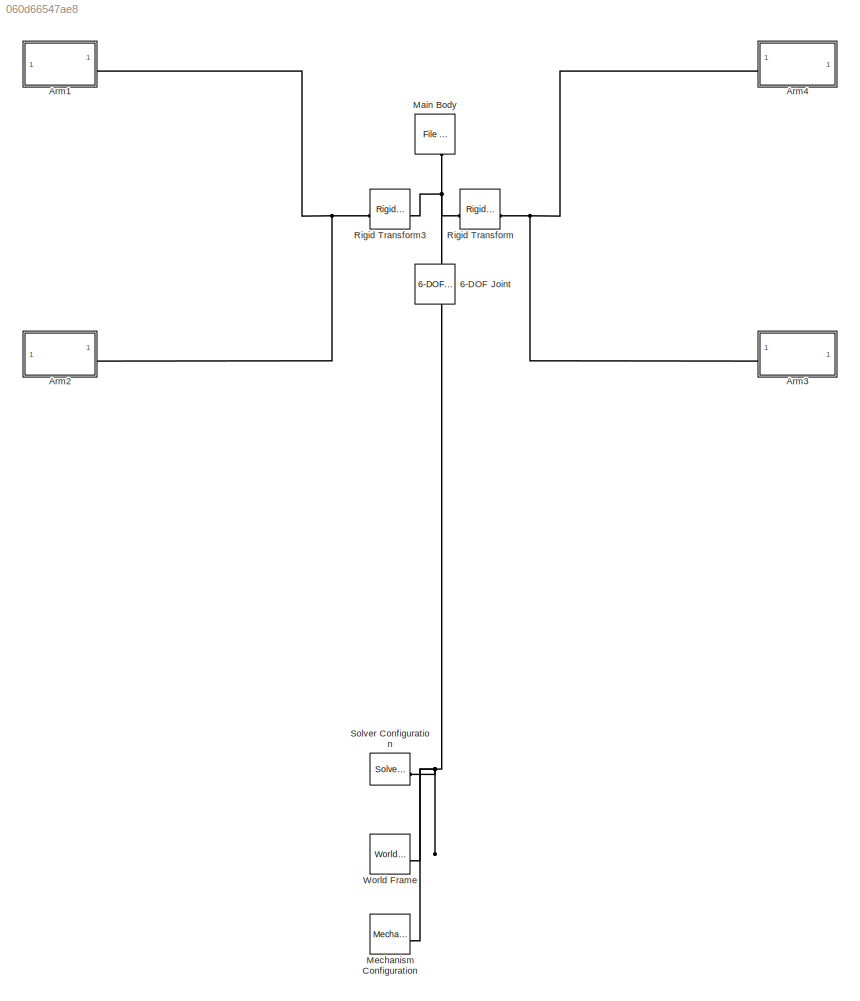
MODEL slx_060d66547ae8
KIND model
CONFIG AbsTol = 1e-3
CONFIG EnableMultiTasking = on
CONFIG FixedStep = auto
CONFIG MaxStep = auto
CONFIG MinStep = auto
CONFIG RelTol = 1e-3
CONFIG SampleTimeConstraint = Unconstrained
CONFIG SolverName = VariableStepAuto
CONFIG StartTime = 0.0
CONFIG StopTime = 10.0
BLOCK [Reference] 6-DOF Joint  REF=sm_lib/Joints/6-DOF Joint
  NameLocation = right
  SourceBlock = sm_lib/Joints/6-DOF Joint
  SourceType = 6-DOF Joint
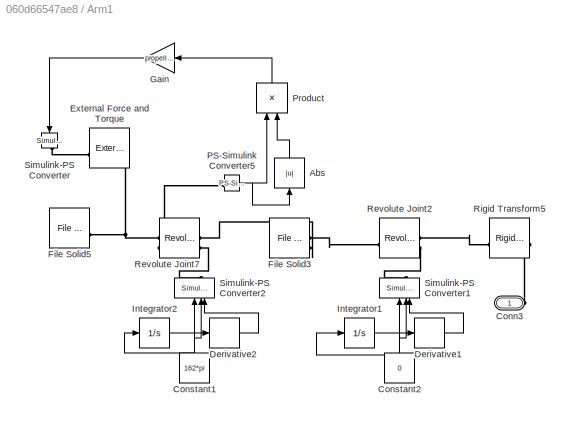
BLOCK [SubSystem] Arm1
  NameLocation = top
BLOCK [Abs] Arm1/Abs
  NameLocation = right
  SaturateOnIntegerOverflow = off
BLOCK [PMIOPort] Arm1/Conn3
  Side = Left
BLOCK [Constant] Arm1/Constant1
  NameLocation = right
  Value = 162*pi
BLOCK [Constant] Arm1/Constant2
  NameLocation = right
  Value = 0
BLOCK [Derivative] Arm1/Derivative1
BLOCK [Derivative] Arm1/Derivative2
BLOCK [Reference] Arm1/External Force and Torque  REF=sm_lib/Forces and
Torques/External Force
and Torque
  SourceBlock = sm_lib/Forces and\nTorques/External Force\nand Torque
  SourceType = External Force\nand Torque
BLOCK [Reference] Arm1/File Solid3  REF=sm_lib/Body Elements/File Solid
  NameLocation = top
  SourceBlock = sm_lib/Body Elements/File Solid
  SourceType = File Solid
BLOCK [Reference] Arm1/File Solid5  REF=sm_lib/Body Elements/File Solid
  NameLocation = top
  SourceBlock = sm_lib/Body Elements/File Solid
  SourceType = File Solid
BLOCK [Gain] Arm1/Gain
  Gain = propeller_lift_coefficient
  NameLocation = top
BLOCK [Integrator] Arm1/Integrator1
BLOCK [Integrator] Arm1/Integrator2
BLOCK [Reference] Arm1/PS-Simulink Converter5  REF=nesl_utility/PS-Simulink
Converter
  SourceBlock = nesl_utility/PS-Simulink\nConverter
  SourceType = PS-Simulink\nConverter
BLOCK [Product] Arm1/Product
  NameLocation = right
BLOCK [Reference] Arm1/Revolute Joint2  REF=sm_lib/Joints/Revolute Joint
  SourceBlock = sm_lib/Joints/Revolute Joint
  SourceType = Revolute Joint
BLOCK [Reference] Arm1/Revolute Joint7  REF=sm_lib/Joints/Revolute Joint
  SourceBlock = sm_lib/Joints/Revolute Joint
  SourceType = Revolute Joint
BLOCK [Reference] Arm1/Rigid Transform5  REF=sm_lib/Frames and
Transforms/Rigid
Transform
  SourceBlock = sm_lib/Frames and\nTransforms/Rigid\nTransform
  SourceType = Rigid\nTransform
BLOCK [Reference] Arm1/Simulink-PS Converter  REF=nesl_utility/Simulink-PS
Converter
  NameLocation = left
  SourceBlock = nesl_utility/Simulink-PS\nConverter
  SourceType = Simulink-PS\nConverter
BLOCK [Reference] Arm1/Simulink-PS Converter1  REF=nesl_utility/Simulink-PS
Converter
  NameLocation = right
  SourceBlock = nesl_utility/Simulink-PS\nConverter
  SourceType = Simulink-PS\nConverter
BLOCK [Reference] Arm1/Simulink-PS Converter2  REF=nesl_utility/Simulink-PS
Converter
  NameLocation = right
  SourceBlock = nesl_utility/Simulink-PS\nConverter
  SourceType = Simulink-PS\nConverter
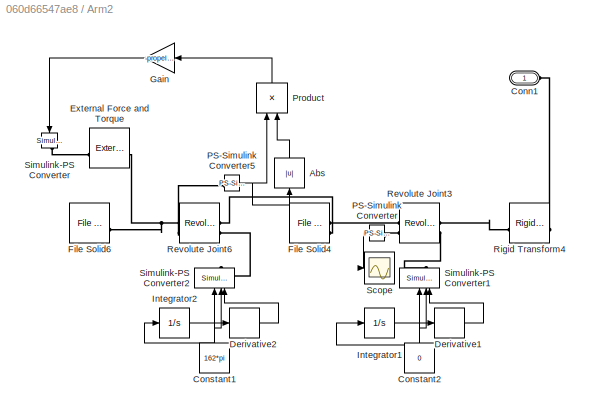
BLOCK [SubSystem] Arm2
  NameLocation = top
BLOCK [Abs] Arm2/Abs
  NameLocation = right
  SaturateOnIntegerOverflow = off
BLOCK [PMIOPort] Arm2/Conn1
  Side = Left
BLOCK [Constant] Arm2/Constant1
  NameLocation = right
  Value = 162*pi
BLOCK [Constant] Arm2/Constant2
  NameLocation = right
  Value = 0
BLOCK [Derivative] Arm2/Derivative1
BLOCK [Derivative] Arm2/Derivative2
BLOCK [Reference] Arm2/External Force and Torque  REF=sm_lib/Forces and
Torques/External Force
and Torque
  SourceBlock = sm_lib/Forces and\nTorques/External Force\nand Torque
  SourceType = External Force\nand Torque
BLOCK [Reference] Arm2/File Solid4  REF=sm_lib/Body Elements/File Solid
  NameLocation = top
  SourceBlock = sm_lib/Body Elements/File Solid
  SourceType = File Solid
BLOCK [Reference] Arm2/File Solid6  REF=sm_lib/Body Elements/File Solid
  NameLocation = top
  SourceBlock = sm_lib/Body Elements/File Solid
  SourceType = File Solid
BLOCK [Gain] Arm2/Gain
  Gain = -propeller_lift_coefficient
  NameLocation = top
BLOCK [Integrator] Arm2/Integrator1
BLOCK [Integrator] Arm2/Integrator2
BLOCK [Reference] Arm2/PS-Simulink Converter  REF=nesl_utility/PS-Simulink
Converter
  NameLocation = top
  SourceBlock = nesl_utility/PS-Simulink\nConverter
  SourceType = PS-Simulink\nConverter
BLOCK [Reference] Arm2/PS-Simulink Converter5  REF=nesl_utility/PS-Simulink
Converter
  SourceBlock = nesl_utility/PS-Simulink\nConverter
  SourceType = PS-Simulink\nConverter
BLOCK [Product] Arm2/Product
  NameLocation = right
BLOCK [Reference] Arm2/Revolute Joint3  REF=sm_lib/Joints/Revolute Joint
  SourceBlock = sm_lib/Joints/Revolute Joint
  SourceType = Revolute Joint
BLOCK [Reference] Arm2/Revolute Joint6  REF=sm_lib/Joints/Revolute Joint
  SourceBlock = sm_lib/Joints/Revolute Joint
  SourceType = Revolute Joint
BLOCK [Reference] Arm2/Rigid Transform4  REF=sm_lib/Frames and
Transforms/Rigid
Transform
  SourceBlock = sm_lib/Frames and\nTransforms/Rigid\nTransform
  SourceType = Rigid\nTransform
BLOCK [Scope] Arm2/Scope
  Floating = off
  NumInputPorts = 1
  ScopeSpecificationString = Simulink.scopes.TimeScopeBlockCfg('CurrentConfiguration', extmgr.ConfigurationSet(extmgr.Configuration('Core','General UI',true),extmgr.Configuration('Core','Source UI',true),extmgr.Configuration('Sources','WiredSimulink',true),extmgr.Configuration('Visuals','Time Domain',true,'SerializedDisplays',{struct('MinYLimReal','-1.00000','MaxYLimReal','1.00000','YLabelReal','','MinYLimMag','0.00000','MaxY...<+1341ch>
BLOCK [Reference] Arm2/Simulink-PS Converter  REF=nesl_utility/Simulink-PS
Converter
  NameLocation = left
  SourceBlock = nesl_utility/Simulink-PS\nConverter
  SourceType = Simulink-PS\nConverter
BLOCK [Reference] Arm2/Simulink-PS Converter1  REF=nesl_utility/Simulink-PS
Converter
  NameLocation = right
  SourceBlock = nesl_utility/Simulink-PS\nConverter
  SourceType = Simulink-PS\nConverter
BLOCK [Reference] Arm2/Simulink-PS Converter2  REF=nesl_utility/Simulink-PS
Converter
  NameLocation = right
  SourceBlock = nesl_utility/Simulink-PS\nConverter
  SourceType = Simulink-PS\nConverter
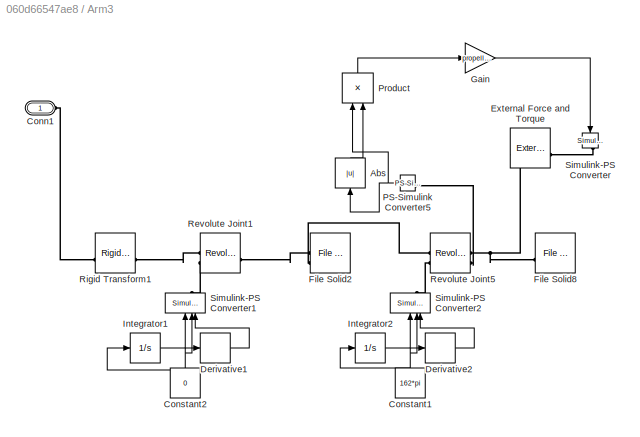
BLOCK [SubSystem] Arm3
BLOCK [Abs] Arm3/Abs
  NameLocation = right
  SaturateOnIntegerOverflow = off
BLOCK [PMIOPort] Arm3/Conn1
  Side = Left
BLOCK [Constant] Arm3/Constant1
  NameLocation = right
  Value = 162*pi
BLOCK [Constant] Arm3/Constant2
  NameLocation = right
  Value = 0
BLOCK [Derivative] Arm3/Derivative1
BLOCK [Derivative] Arm3/Derivative2
BLOCK [Reference] Arm3/External Force and Torque  REF=sm_lib/Forces and
Torques/External Force
and Torque
  SourceBlock = sm_lib/Forces and\nTorques/External Force\nand Torque
  SourceType = External Force\nand Torque
BLOCK [Reference] Arm3/File Solid2  REF=sm_lib/Body Elements/File Solid
  SourceBlock = sm_lib/Body Elements/File Solid
  SourceType = File Solid
BLOCK [Reference] Arm3/File Solid8  REF=sm_lib/Body Elements/File Solid
  SourceBlock = sm_lib/Body Elements/File Solid
  SourceType = File Solid
BLOCK [Gain] Arm3/Gain
  Gain = propeller_lift_coefficient
  NameLocation = top
BLOCK [Integrator] Arm3/Integrator1
BLOCK [Integrator] Arm3/Integrator2
BLOCK [Reference] Arm3/PS-Simulink Converter5  REF=nesl_utility/PS-Simulink
Converter
  SourceBlock = nesl_utility/PS-Simulink\nConverter
  SourceType = PS-Simulink\nConverter
BLOCK [Product] Arm3/Product
  NameLocation = right
BLOCK [Reference] Arm3/Revolute Joint1  REF=sm_lib/Joints/Revolute Joint
  SourceBlock = sm_lib/Joints/Revolute Joint
  SourceType = Revolute Joint
BLOCK [Reference] Arm3/Revolute Joint5  REF=sm_lib/Joints/Revolute Joint
  SourceBlock = sm_lib/Joints/Revolute Joint
  SourceType = Revolute Joint
BLOCK [Reference] Arm3/Rigid Transform1  REF=sm_lib/Frames and
Transforms/Rigid
Transform
  SourceBlock = sm_lib/Frames and\nTransforms/Rigid\nTransform
  SourceType = Rigid\nTransform
BLOCK [Reference] Arm3/Simulink-PS Converter  REF=nesl_utility/Simulink-PS
Converter
  NameLocation = left
  SourceBlock = nesl_utility/Simulink-PS\nConverter
  SourceType = Simulink-PS\nConverter
BLOCK [Reference] Arm3/Simulink-PS Converter1  REF=nesl_utility/Simulink-PS
Converter
  NameLocation = right
  SourceBlock = nesl_utility/Simulink-PS\nConverter
  SourceType = Simulink-PS\nConverter
BLOCK [Reference] Arm3/Simulink-PS Converter2  REF=nesl_utility/Simulink-PS
Converter
  NameLocation = right
  SourceBlock = nesl_utility/Simulink-PS\nConverter
  SourceType = Simulink-PS\nConverter
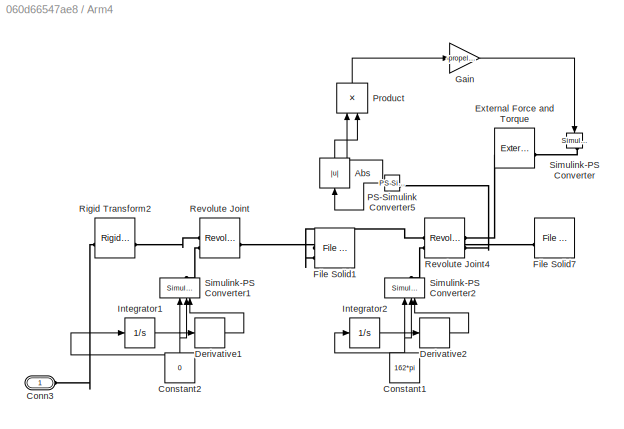
BLOCK [SubSystem] Arm4
BLOCK [Abs] Arm4/Abs
  NameLocation = right
  SaturateOnIntegerOverflow = off
BLOCK [PMIOPort] Arm4/Conn3
  Side = Left
BLOCK [Constant] Arm4/Constant1
  NameLocation = right
  Value = 162*pi
BLOCK [Constant] Arm4/Constant2
  NameLocation = right
  Value = 0
BLOCK [Derivative] Arm4/Derivative1
BLOCK [Derivative] Arm4/Derivative2
BLOCK [Reference] Arm4/External Force and Torque  REF=sm_lib/Forces and
Torques/External Force
and Torque
  SourceBlock = sm_lib/Forces and\nTorques/External Force\nand Torque
  SourceType = External Force\nand Torque
BLOCK [Reference] Arm4/File Solid1  REF=sm_lib/Body Elements/File Solid
  SourceBlock = sm_lib/Body Elements/File Solid
  SourceType = File Solid
BLOCK [Reference] Arm4/File Solid7  REF=sm_lib/Body Elements/File Solid
  SourceBlock = sm_lib/Body Elements/File Solid
  SourceType = File Solid
BLOCK [Gain] Arm4/Gain
  Gain = -propeller_lift_coefficient
  NameLocation = top
BLOCK [Integrator] Arm4/Integrator1
BLOCK [Integrator] Arm4/Integrator2
BLOCK [Reference] Arm4/PS-Simulink Converter5  REF=nesl_utility/PS-Simulink
Converter
  SourceBlock = nesl_utility/PS-Simulink\nConverter
  SourceType = PS-Simulink\nConverter
BLOCK [Product] Arm4/Product
  NameLocation = right
BLOCK [Reference] Arm4/Revolute Joint  REF=sm_lib/Joints/Revolute Joint
  SourceBlock = sm_lib/Joints/Revolute Joint
  SourceType = Revolute Joint
BLOCK [Reference] Arm4/Revolute Joint4  REF=sm_lib/Joints/Revolute Joint
  SourceBlock = sm_lib/Joints/Revolute Joint
  SourceType = Revolute Joint
BLOCK [Reference] Arm4/Rigid Transform2  REF=sm_lib/Frames and
Transforms/Rigid
Transform
  SourceBlock = sm_lib/Frames and\nTransforms/Rigid\nTransform
  SourceType = Rigid\nTransform
BLOCK [Reference] Arm4/Simulink-PS Converter  REF=nesl_utility/Simulink-PS
Converter
  NameLocation = left
  SourceBlock = nesl_utility/Simulink-PS\nConverter
  SourceType = Simulink-PS\nConverter
BLOCK [Reference] Arm4/Simulink-PS Converter1  REF=nesl_utility/Simulink-PS
Converter
  NameLocation = right
  SourceBlock = nesl_utility/Simulink-PS\nConverter
  SourceType = Simulink-PS\nConverter
BLOCK [Reference] Arm4/Simulink-PS Converter2  REF=nesl_utility/Simulink-PS
Converter
  NameLocation = right
  SourceBlock = nesl_utility/Simulink-PS\nConverter
  SourceType = Simulink-PS\nConverter
BLOCK [Reference] Main Body  REF=sm_lib/Body Elements/File Solid
  NameLocation = left
  SourceBlock = sm_lib/Body Elements/File Solid
  SourceType = File Solid
BLOCK [Reference] Mechanism Configuration  REF=sm_lib/Utilities/Mechanism
Configuration
  SourceBlock = sm_lib/Utilities/Mechanism\nConfiguration
  SourceType = Mechanism\nConfiguration
BLOCK [Reference] Rigid Transform  REF=sm_lib/Frames and
Transforms/Rigid
Transform
  SourceBlock = sm_lib/Frames and\nTransforms/Rigid\nTransform
  SourceType = Rigid\nTransform
BLOCK [Reference] Rigid Transform3  REF=sm_lib/Frames and
Transforms/Rigid
Transform
  SourceBlock = sm_lib/Frames and\nTransforms/Rigid\nTransform
  SourceType = Rigid\nTransform
BLOCK [Reference] Solver Configuration  REF=nesl_utility/Solver
Configuration
  SourceBlock = nesl_utility/Solver\nConfiguration
  SourceType = Solver\nConfiguration
BLOCK [Reference] World Frame  REF=sm_lib/Frames and
Transforms/World Frame
  SourceBlock = sm_lib/Frames and\nTransforms/World Frame
  SourceType = World Frame
LINE Arm1/Abs:1 -> Arm1/Product:2
NET Arm1/Constant1:1 -> Arm1/Derivative2:1, Arm1/Integrator2:1, Arm1/Simulink-PS Converter2:2
NET Arm1/Constant2:1 -> Arm1/Derivative1:1, Arm1/Integrator1:1, Arm1/Simulink-PS Converter1:2
LINE Arm1/Derivative1:1 -> Arm1/Simulink-PS Converter1:3
LINE Arm1/Derivative2:1 -> Arm1/Simulink-PS Converter2:3
LINE Arm1/Gain:1 -> Arm1/Simulink-PS Converter:1
LINE Arm1/Integrator1:1 -> Arm1/Simulink-PS Converter1:1
LINE Arm1/Integrator2:1 -> Arm1/Simulink-PS Converter2:1
NET Arm1/PS-Simulink Converter5:1 -> Arm1/Abs:1, Arm1/Product:1
LINE Arm1/Product:1 -> Arm1/Gain:1
LINE Arm2/Abs:1 -> Arm2/Product:2
NET Arm2/Constant1:1 -> Arm2/Derivative2:1, Arm2/Integrator2:1, Arm2/Simulink-PS Converter2:2
NET Arm2/Constant2:1 -> Arm2/Derivative1:1, Arm2/Integrator1:1, Arm2/Simulink-PS Converter1:2
LINE Arm2/Derivative1:1 -> Arm2/Simulink-PS Converter1:3
LINE Arm2/Derivative2:1 -> Arm2/Simulink-PS Converter2:3
LINE Arm2/Gain:1 -> Arm2/Simulink-PS Converter:1
LINE Arm2/Integrator1:1 -> Arm2/Simulink-PS Converter1:1
LINE Arm2/Integrator2:1 -> Arm2/Simulink-PS Converter2:1
NET Arm2/PS-Simulink Converter5:1 -> Arm2/Abs:1, Arm2/Product:1
LINE Arm2/PS-Simulink Converter:1 -> Arm2/Scope:1
LINE Arm2/Product:1 -> Arm2/Gain:1
LINE Arm3/Abs:1 -> Arm3/Product:2
NET Arm3/Constant1:1 -> Arm3/Derivative2:1, Arm3/Integrator2:1, Arm3/Simulink-PS Converter2:2
NET Arm3/Constant2:1 -> Arm3/Derivative1:1, Arm3/Integrator1:1, Arm3/Simulink-PS Converter1:2
LINE Arm3/Derivative1:1 -> Arm3/Simulink-PS Converter1:3
LINE Arm3/Derivative2:1 -> Arm3/Simulink-PS Converter2:3
LINE Arm3/Gain:1 -> Arm3/Simulink-PS Converter:1
LINE Arm3/Integrator1:1 -> Arm3/Simulink-PS Converter1:1
LINE Arm3/Integrator2:1 -> Arm3/Simulink-PS Converter2:1
NET Arm3/PS-Simulink Converter5:1 -> Arm3/Abs:1, Arm3/Product:1
LINE Arm3/Product:1 -> Arm3/Gain:1
LINE Arm4/Abs:1 -> Arm4/Product:2
NET Arm4/Constant1:1 -> Arm4/Derivative2:1, Arm4/Integrator2:1, Arm4/Simulink-PS Converter2:2
NET Arm4/Constant2:1 -> Arm4/Derivative1:1, Arm4/Integrator1:1, Arm4/Simulink-PS Converter1:2
LINE Arm4/Derivative1:1 -> Arm4/Simulink-PS Converter1:3
LINE Arm4/Derivative2:1 -> Arm4/Simulink-PS Converter2:3
LINE Arm4/Gain:1 -> Arm4/Simulink-PS Converter:1
LINE Arm4/Integrator1:1 -> Arm4/Simulink-PS Converter1:1
LINE Arm4/Integrator2:1 -> Arm4/Simulink-PS Converter2:1
NET Arm4/PS-Simulink Converter5:1 -> Arm4/Abs:1, Arm4/Product:1
LINE Arm4/Product:1 -> Arm4/Gain:1
PNET net1: 6-DOF Joint:LConn1 -- Mechanism Configuration:RConn1 -- Solver Configuration:RConn1 -- World Frame:RConn1
PNET net2: 6-DOF Joint:RConn1 -- Main Body:RConn1 -- Rigid Transform3:LConn1 -- Rigid Transform:LConn1
PLINE Arm1/Conn3:RConn1 -- Arm1/Rigid Transform5:LConn1
PLINE Arm1/External Force and Torque:LConn1 -- Arm1/Simulink-PS Converter:RConn1
PNET net3: Arm1/External Force and Torque:RConn1 -- Arm1/File Solid5:LConn1 -- Arm1/Revolute Joint7:RConn1
PLINE Arm1/File Solid3:LConn1 -- Arm1/Revolute Joint2:RConn1
PLINE Arm1/File Solid3:LConn2 -- Arm1/Revolute Joint7:LConn1
PLINE Arm1/PS-Simulink Converter5:LConn1 -- Arm1/Revolute Joint7:RConn2
PLINE Arm1/Revolute Joint2:LConn1 -- Arm1/Rigid Transform5:RConn1
PLINE Arm1/Revolute Joint2:LConn2 -- Arm1/Simulink-PS Converter1:RConn1
PLINE Arm1/Revolute Joint7:LConn2 -- Arm1/Simulink-PS Converter2:RConn1
PNET net4: Arm1:LConn1 -- Arm2:LConn1 -- Rigid Transform3:RConn1
PLINE Arm2/Conn1:RConn1 -- Arm2/Rigid Transform4:LConn1
PLINE Arm2/External Force and Torque:LConn1 -- Arm2/Simulink-PS Converter:RConn1
PNET net5: Arm2/External Force and Torque:RConn1 -- Arm2/File Solid6:LConn1 -- Arm2/Revolute Joint6:RConn1
PLINE Arm2/File Solid4:LConn1 -- Arm2/Revolute Joint3:RConn1
PLINE Arm2/File Solid4:LConn2 -- Arm2/Revolute Joint6:LConn1
PLINE Arm2/PS-Simulink Converter5:LConn1 -- Arm2/Revolute Joint6:RConn2
PLINE Arm2/PS-Simulink Converter:LConn1 -- Arm2/Revolute Joint3:RConn2
PLINE Arm2/Revolute Joint3:LConn1 -- Arm2/Rigid Transform4:RConn1
PLINE Arm2/Revolute Joint3:LConn2 -- Arm2/Simulink-PS Converter1:RConn1
PLINE Arm2/Revolute Joint6:LConn2 -- Arm2/Simulink-PS Converter2:RConn1
PLINE Arm3/Conn1:RConn1 -- Arm3/Rigid Transform1:LConn1
PLINE Arm3/External Force and Torque:LConn1 -- Arm3/Simulink-PS Converter:RConn1
PNET net6: Arm3/External Force and Torque:RConn1 -- Arm3/File Solid8:LConn1 -- Arm3/Revolute Joint5:RConn1
PLINE Arm3/File Solid2:LConn1 -- Arm3/Revolute Joint1:RConn1
PLINE Arm3/File Solid2:LConn2 -- Arm3/Revolute Joint5:LConn1
PLINE Arm3/PS-Simulink Converter5:LConn1 -- Arm3/Revolute Joint5:RConn2
PLINE Arm3/Revolute Joint1:LConn1 -- Arm3/Rigid Transform1:RConn1
PLINE Arm3/Revolute Joint1:LConn2 -- Arm3/Simulink-PS Converter1:RConn1
PLINE Arm3/Revolute Joint5:LConn2 -- Arm3/Simulink-PS Converter2:RConn1
PNET net7: Arm3:LConn1 -- Arm4:LConn1 -- Rigid Transform:RConn1
PLINE Arm4/Conn3:RConn1 -- Arm4/Rigid Transform2:LConn1
PLINE Arm4/External Force and Torque:LConn1 -- Arm4/Simulink-PS Converter:RConn1
PNET net8: Arm4/External Force and Torque:RConn1 -- Arm4/File Solid7:LConn1 -- Arm4/Revolute Joint4:RConn1
PLINE Arm4/File Solid1:LConn1 -- Arm4/Revolute Joint:RConn1
PLINE Arm4/File Solid1:LConn2 -- Arm4/Revolute Joint4:LConn1
PLINE Arm4/PS-Simulink Converter5:LConn1 -- Arm4/Revolute Joint4:RConn2
PLINE Arm4/Revolute Joint4:LConn2 -- Arm4/Simulink-PS Converter2:RConn1
PLINE Arm4/Revolute Joint:LConn1 -- Arm4/Rigid Transform2:RConn1
PLINE Arm4/Revolute Joint:LConn2 -- Arm4/Simulink-PS Converter1:RConn1
note: NET lines group one-source signal fan-out (src -> all destinations, sorted); 1:1 wires keep LINE; PNET lines group multi-terminal physical nets as a canonical sorted terminal list (undirected conserving connections); 2-terminal nets keep the pairwise PLINE form
